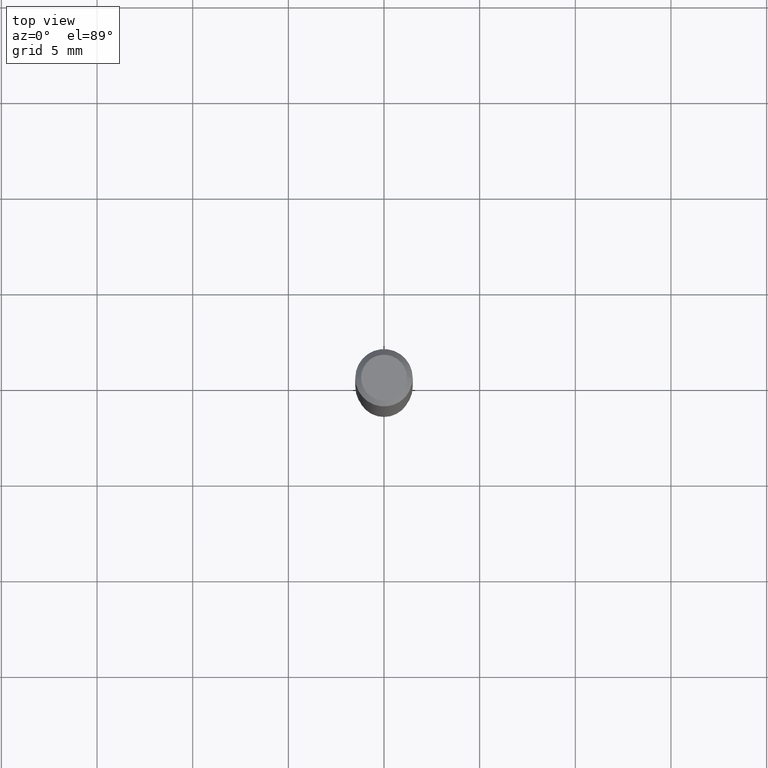
[diagram: clean part render]
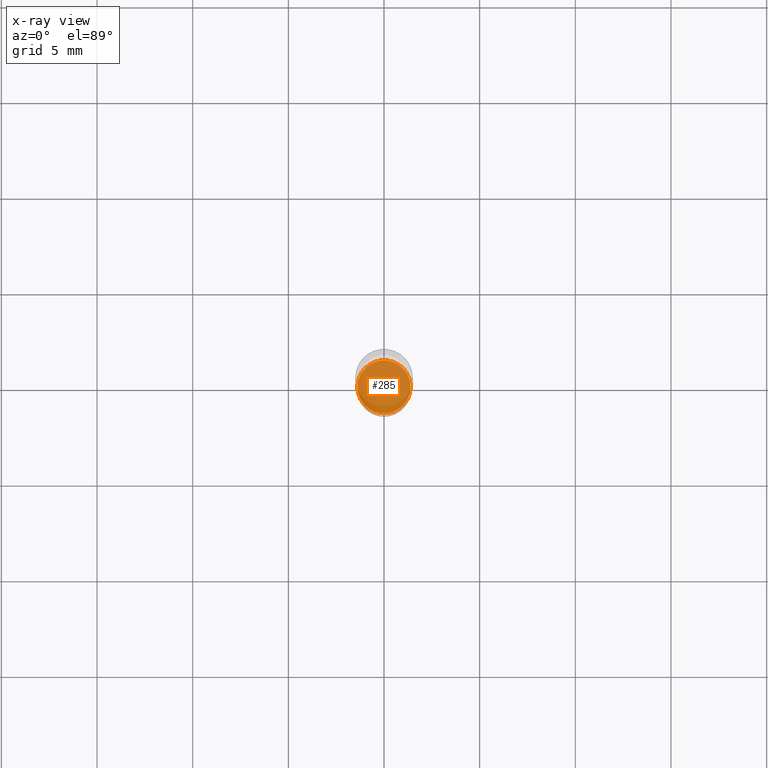
[diagram: x-ray — body ghosted, one internal face saturated and labeled with its STEP entity id]
A machine part, top view, then the same camera in x-ray: the body is ghosted and one INTERNAL B-rep face — a face not visible from any outside direction — is saturated and labeled: STEP entity #285.
In plain terms, the highlighted planar face has unit normal (-0, 0, 1).
Its self-contained STEP definition (entity closure, byte-faithful):
#2 = AXIS2_PLACEMENT_3D ( 'NONE', #296, #29, #189 ) ;
#4 = EDGE_LOOP ( 'NONE', ( #207, #159 ) ) ;
#8 = EDGE_CURVE ( 'NONE', #319, #294, #315, .T. ) ;
#29 = DIRECTION ( 'NONE',  ( -2.445468806185136597E-29, 3.491481338843145583E-15, 1.000000000000000000 ) ) ;
#57 = DIRECTION ( 'NONE',  ( 1.000000000000000000, -6.982962677686263555E-15, 0.000000000000000000 ) ) ;
#59 = AXIS2_PLACEMENT_3D ( 'NONE', #81, #274, #267 ) ;
#81 = CARTESIAN_POINT ( 'NONE',  ( 7.715371704351580139E-30, -6.549535475971063666E-15, -1.094500000000000028 ) ) ;
#136 = EDGE_CURVE ( 'NONE', #294, #319, #338, .T. ) ;
#159 = ORIENTED_EDGE ( 'NONE', *, *, #8, .F. ) ;
#189 = DIRECTION ( 'NONE',  ( 1.000000000000000000, -6.982962677686263555E-15, 0.000000000000000000 ) ) ;
#207 = ORIENTED_EDGE ( 'NONE', *, *, #136, .F. ) ;
#248 = DIRECTION ( 'NONE',  ( -2.445468806185136597E-29, 3.491481338843145583E-15, 1.000000000000000000 ) ) ;
#267 = DIRECTION ( 'NONE',  ( 1.000000000000000000, -6.982962677686265922E-15, 4.876176775795935793E-29 ) ) ;
#274 = DIRECTION ( 'NONE',  ( -2.438088387897960049E-29, 3.491481338843145188E-15, 1.000000000000000000 ) ) ;
#285 = ADVANCED_FACE ( 'NONE', ( #295 ), #298, .F. ) ;
#294 = VERTEX_POINT ( 'NONE', #413 ) ;
#295 = FACE_OUTER_BOUND ( 'NONE', #4, .T. ) ;
#296 = CARTESIAN_POINT ( 'NONE',  ( 2.676565608369632355E-29, -3.821426325363822773E-15, -1.094500000000000028 ) ) ;
#297 = AXIS2_PLACEMENT_3D ( 'NONE', #389, #248, #57 ) ;
#298 = PLANE ( 'NONE',  #59 ) ;
#315 = CIRCLE ( 'NONE', #2, 0.05480000000000000149 ) ;
#319 = VERTEX_POINT ( 'NONE', #340 ) ;
#338 = CIRCLE ( 'NONE', #297, 0.05480000000000000149 ) ;
#340 = CARTESIAN_POINT ( 'NONE',  ( -0.05480000000000000149, -3.429399678993176561E-15, -1.094500000000000028 ) ) ;
#389 = CARTESIAN_POINT ( 'NONE',  ( 2.676565608369632355E-29, -3.821426325363822773E-15, -1.094500000000000028 ) ) ;
#413 = CARTESIAN_POINT ( 'NONE',  ( 0.05480000000000000149, -4.204092680101030555E-15, -1.094500000000000028 ) ) ;